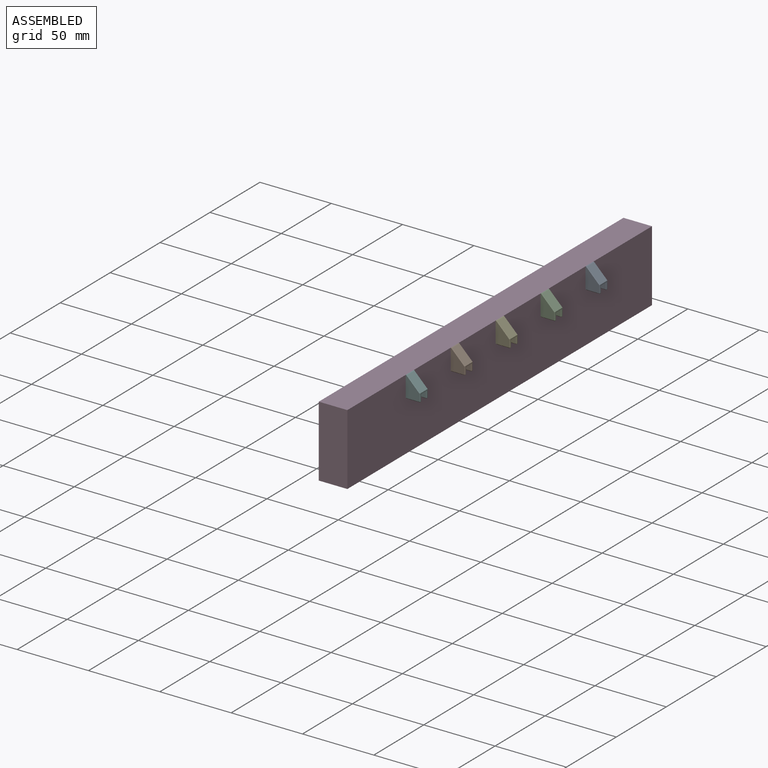
[diagram: assembled view]
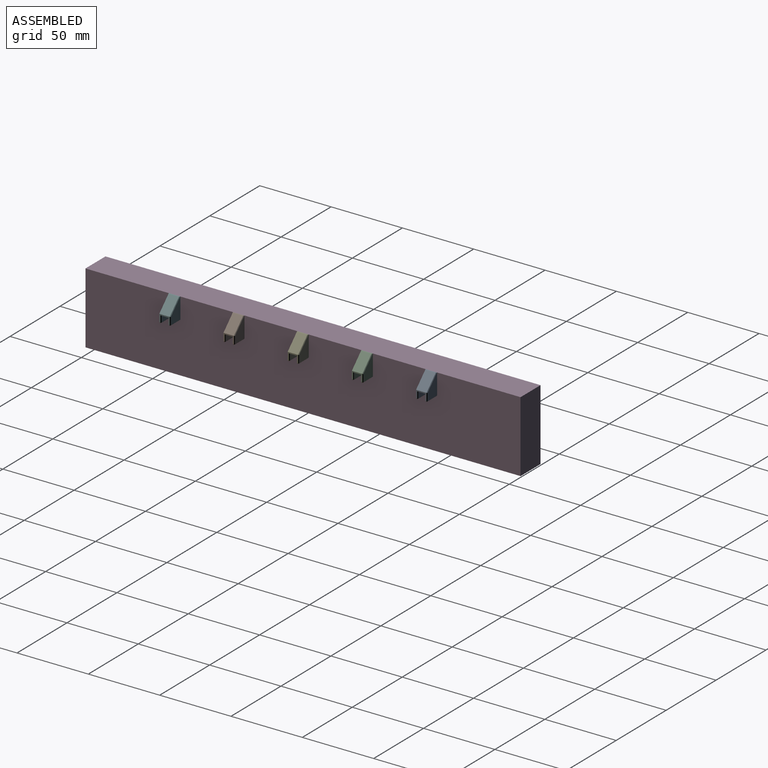
[diagram: assembled view, second angle]
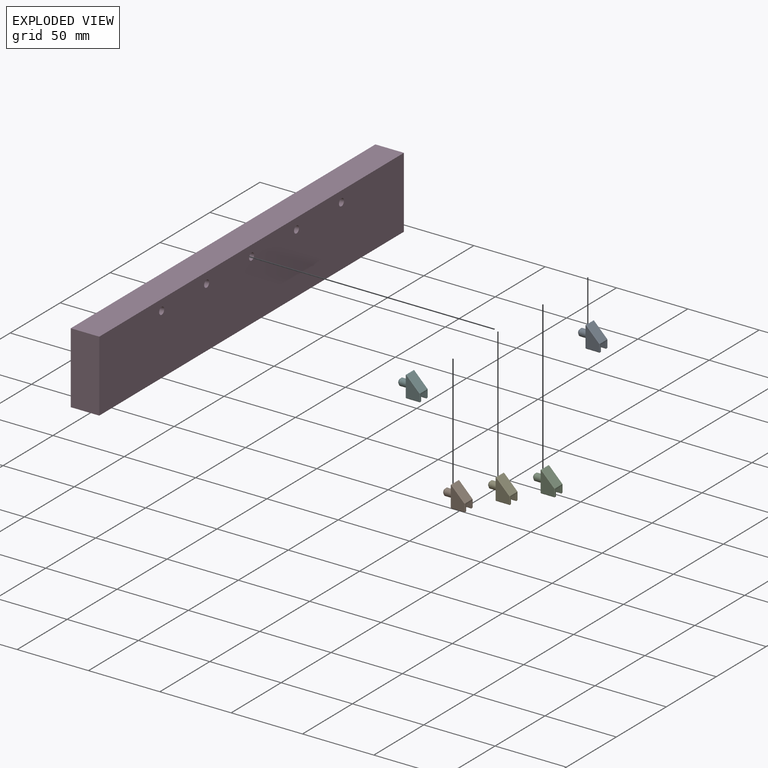
[diagram: exploded view]
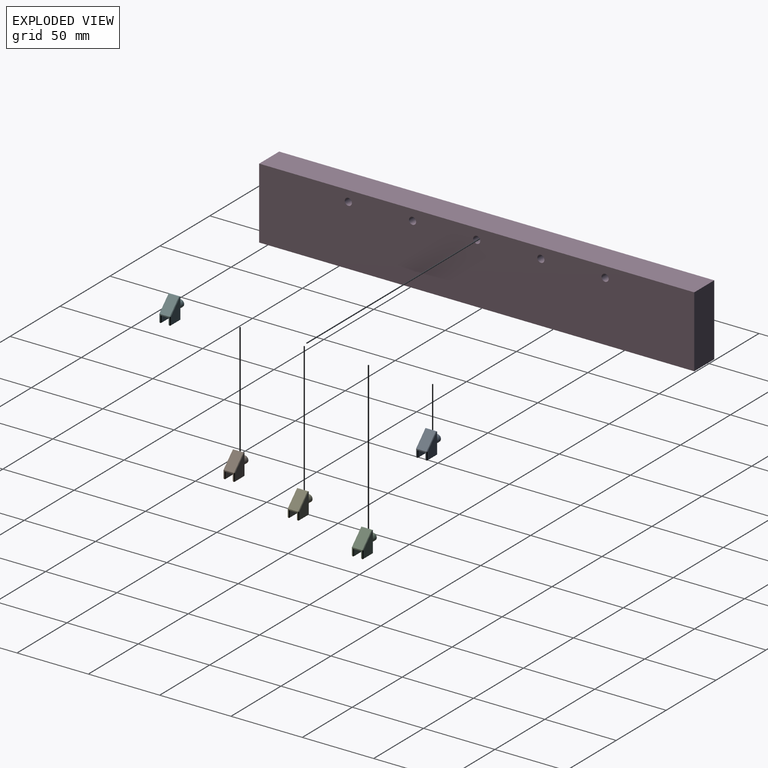
[diagram: exploded view, second angle]
ASSEMBLY  parts=6 mates=5
PART A: 36 faces, bbox 17x8x15 mm
  f0: plane 10x5.8mm, normal (0,0,-1), area 50.3mm2, adj f1,f2,f9,f11,f17,f23,f26,f34
  f1: plane 14.6x8mm, normal (-1,0,0), area 70.5mm2, adj f0,f4,f5,f6,f7,f20,f23,f32
  f2: plane 7.2x5.4mm, normal (1,0,0), area 12.2mm2, adj f0,f3,f14,f16,f17,f25,f26,f27
  f3: plane 9.2x9.2mm, normal (0.71,0,0.71), area 93.7mm2, adj f2,f4,f13,f24
  f4: plane 8x0.8mm, normal (0,0,1), area 6.2mm2, adj f1,f3,f5,f6,f13,f24
  f5: plane 14.6x9.6mm, normal (0,-1,0), area 96.3mm2, adj f1,f4,f13,f14,f18
  f6: plane 14.6x9.6mm, normal (0,1,0), area 96.3mm2, adj f1,f4,f24,f25,f30
  f7: cylinder r=2.5mm len=6mm, axis (1,0,0), area 94.2mm2, adj f1,f35
  f8: plane 3x3mm, normal (-1,0,0), area 7.1mm2, adj f35
  f9: plane 9.2x4.6mm, normal (0,1,0), area 42.3mm2, adj f0,f17,f21,f23
  f10: plane 9.2x0.7mm, normal (0,0,-1), area 6.4mm2, adj f16,f18,f20,f21
  f11: plane 9.2x4.6mm, normal (0,-1,0), area 42.3mm2, adj f0,f26,f31,f34
  f12: plane 9.2x0.7mm, normal (0,0,-1), area 6.4mm2, adj f27,f30,f31,f32
  f13: plane 9.77x9.37mm, normal (0.5,-0.71,0.5), area 7.4mm2, adj f3,f4,f5,f14
  f14: plane 5.4x0.4mm, normal (0.71,-0.71,0), area 3mm2, adj f2,f5,f13,f15
  f15: plane 0.4x0.4mm, normal (0.58,-0.58,-0.58), area 0.1mm2, adj f14,f16,f18
  f16: plane 0.7x0.4mm, normal (0.71,0,-0.71), area 0.4mm2, adj f2,f10,f15,f19
  f17: plane 4.6x0.4mm, normal (0.71,0.71,0), area 2.6mm2, adj f0,f2,f9,f19
  f18: plane 9.6x0.4mm, normal (0,-0.71,-0.71), area 5.3mm2, adj f5,f10,f15,f20
  f19: plane 0.4x0.4mm, normal (0.58,0.58,-0.58), area 0.1mm2, adj f16,f17,f21
  f20: plane 1.1x0.4mm, normal (-0.71,0,-0.71), area 0.5mm2, adj f1,f10,f18,f22
  f21: plane 9.2x0.4mm, normal (0,0.71,-0.71), area 5.2mm2, adj f9,f10,f19,f22
  f22: plane 0.4x0.4mm, normal (-0.58,0.58,-0.58), area 0.1mm2, adj f20,f21,f23
  f23: plane 4.6x0.4mm, normal (-0.71,0.71,0), area 2.6mm2, adj f0,f1,f9,f22
  f24: plane 9.77x9.37mm, normal (0.5,0.71,0.5), area 7.4mm2, adj f3,f4,f6,f25
  f25: plane 5.4x0.4mm, normal (0.71,0.71,0), area 3mm2, adj f2,f6,f24,f28
  f26: plane 4.6x0.4mm, normal (0.71,-0.71,0), area 2.6mm2, adj f0,f2,f11,f29
  f27: plane 0.7x0.4mm, normal (0.71,0,-0.71), area 0.4mm2, adj f2,f12,f28,f29
  f28: plane 0.4x0.4mm, normal (0.58,0.58,-0.58), area 0.1mm2, adj f25,f27,f30
  f29: plane 0.4x0.4mm, normal (0.58,-0.58,-0.58), area 0.1mm2, adj f26,f27,f31
  f30: plane 9.6x0.4mm, normal (0,0.71,-0.71), area 5.3mm2, adj f6,f12,f28,f32
  f31: plane 9.2x0.4mm, normal (0,-0.71,-0.71), area 5.2mm2, adj f11,f12,f29,f33
  f32: plane 1.1x0.4mm, normal (-0.71,0,-0.71), area 0.5mm2, adj f1,f12,f30,f33
  f33: plane 0.4x0.4mm, normal (-0.58,-0.58,-0.58), area 0.1mm2, adj f31,f32,f34
  f34: plane 4.6x0.4mm, normal (-0.71,-0.71,0), area 2.6mm2, adj f0,f1,f11,f33
  f35: cone r=2.5mm half-angle=45deg, axis (1,0,0), area 17.8mm2, adj f7,f8
PART B: same geometry as A
PART C: same geometry as A
PART D: 16 faces, bbox 20x305x50 mm
  f0: plane 305x50mm, normal (1,0,0), area 15250mm2, adj f1,f3,f4,f5
  f1: plane 50x20mm, normal (0,1,0), area 1000mm2, adj f0,f2,f4,f5
  f2: plane 305x50mm, normal (-1,0,0), area 15151.8mm2, adj f1,f3,f4,f5,f6,f8,f10,f12
  f3: plane 50x20mm, normal (0,-1,0), area 1000mm2, adj f0,f2,f4,f5
  f4: plane 305x20mm, normal (0,0,1), area 6100mm2, adj f0,f1,f2,f3
  f5: plane 305x20mm, normal (0,0,-1), area 6100mm2, adj f0,f1,f2,f3
  f6: cylinder r=2.5mm len=7mm, axis (-1,0,0), area 110mm2, adj f2,f7
  f7: plane 5x5mm, normal (-1,0,0), area 19.6mm2, adj f6
  f8: cylinder r=2.5mm len=7mm, axis (-1,0,0), area 110mm2, adj f2,f9
  f9: plane 5x5mm, normal (-1,0,0), area 19.6mm2, adj f8
  f10: cylinder r=2.5mm len=7mm, axis (-1,0,0), area 110mm2, adj f2,f11
  f11: plane 5x5mm, normal (-1,0,0), area 19.6mm2, adj f10
  f12: cylinder r=2.5mm len=7mm, axis (-1,0,0), area 110mm2, adj f2,f13
  f13: plane 5x5mm, normal (-1,0,0), area 19.6mm2, adj f12
  f14: cylinder r=2.5mm len=7mm, axis (-1,0,0), area 110mm2, adj f2,f15
  f15: plane 5x5mm, normal (-1,0,0), area 19.6mm2, adj f14
PART E: same geometry as A
PART F: same geometry as A
PLACE A t=(-369.56,-113.23,146.41)mm
PLACE B t=(-369.56,-248.23,146.41)mm
PLACE C t=(-369.56,-158.23,146.41)mm
PLACE D rot(axis=(0,0,1),180deg) t=(-889.56,-203.23,106.41)mm
PLACE E t=(-369.56,-203.23,146.41)mm
PLACE F t=(-369.56,-293.23,146.41)mm
MATE fastened B.f7 <-> D.f12  axis (-1,0,0) through (-376.56,-248.23,148.91)mm
MATE fastened D.f6 <-> A.f7  axis (1,0,0) through (-376.56,-113.23,148.91)mm
MATE fastened D.f10 <-> E.f7  axis (1,0,0) through (-376.56,-203.23,148.91)mm
MATE fastened C.f7 <-> D.f8  axis (-1,0,0) through (-376.56,-158.23,148.91)mm
MATE fastened D.f14 <-> F.f7  axis (1,0,0) through (-376.56,-293.23,148.91)mm
